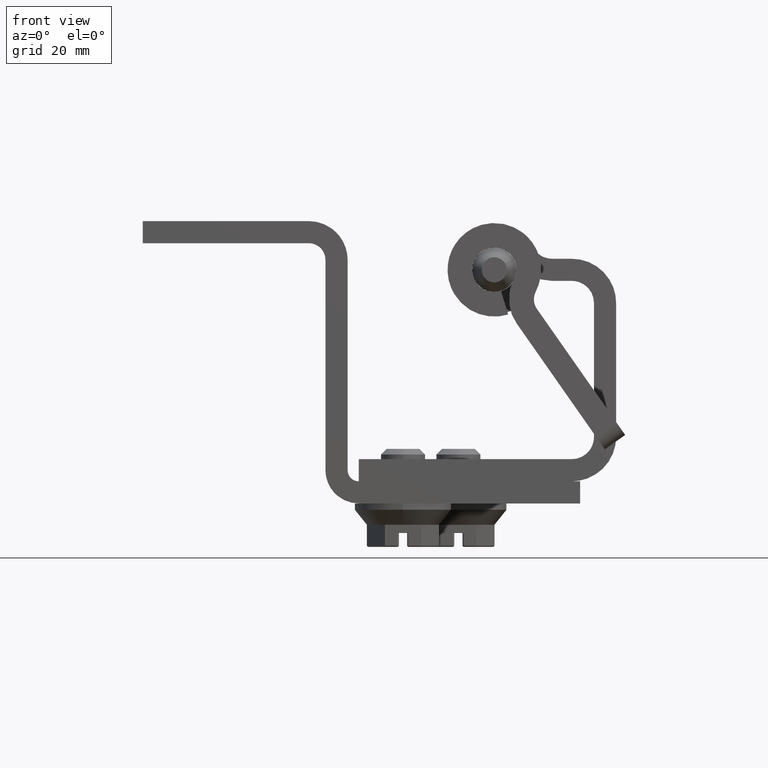
[diagram: clean part render]
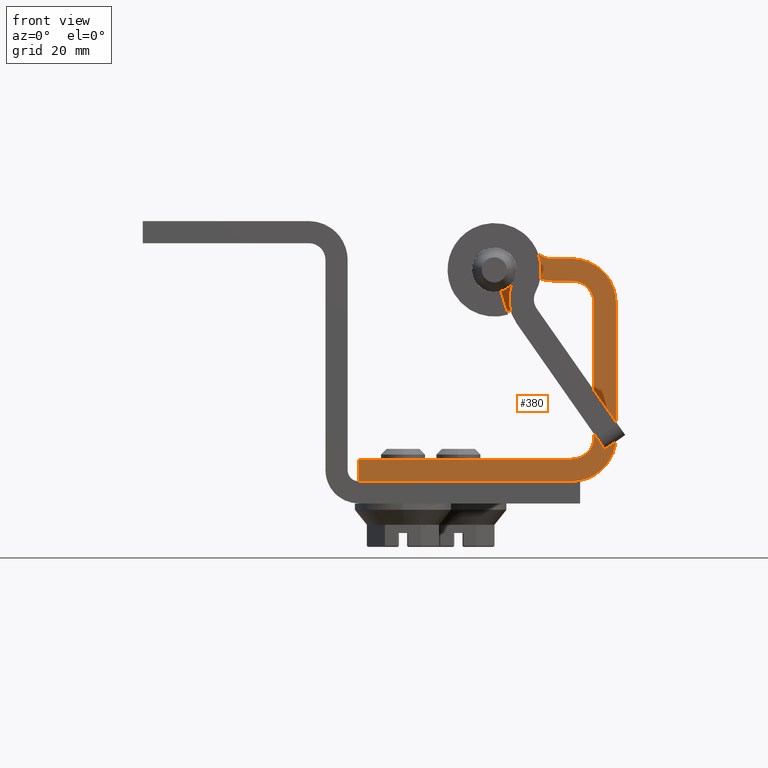
[diagram: same view with one face highlighted and labeled with its STEP entity id]
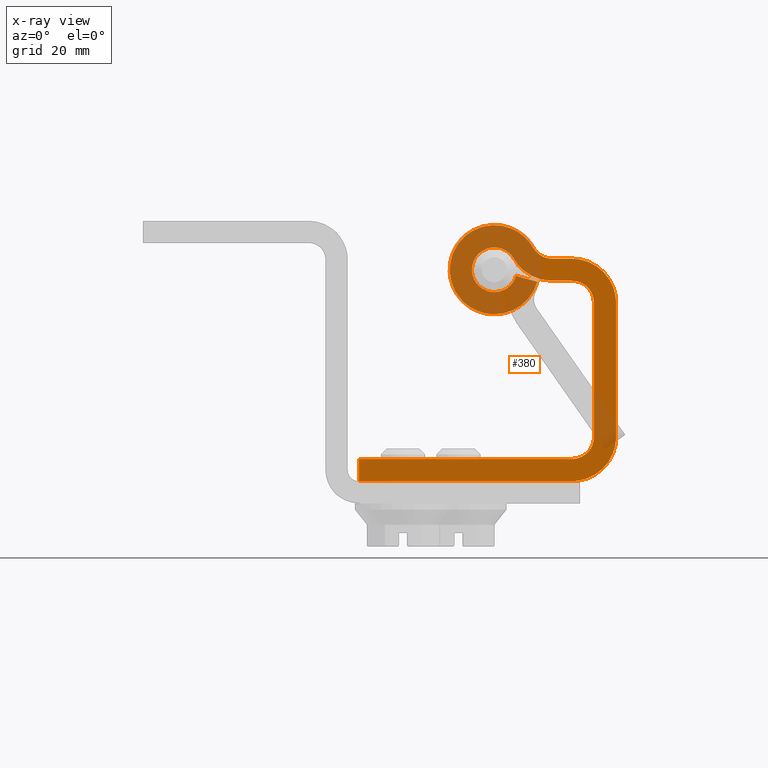
[diagram: x-ray of the same camera — body ghosted, the highlighted face saturated]
A machine part, front view. The second image highlights one B-rep face of the part: STEP entity #380.
The next image is the same camera in x-ray: the body ghosted, the highlighted face saturated — about 34% of this face is hidden behind the body in this view.
In plain terms, the highlighted planar face has unit normal (0, 1, 0).
Its self-contained STEP definition (entity closure, byte-faithful):
#380=ADVANCED_FACE('',(#1218),#1217,.F.);
#1217=PLANE('',#3998);
#1218=FACE_OUTER_BOUND('',#3999,.T.);
#3995=CARTESIAN_POINT('',(-2.91500000000E+01,-2.00000000000E+01,1.28764623578E+01));
#3996=DIRECTION('',(-0.00000000000E+00,1.00000000000E+00,0.00000000000E+00));
#3997=DIRECTION('',(1.00000000000E+00,0.00000000000E+00,0.00000000000E+00));
#3998=AXIS2_PLACEMENT_3D('',#3995,#3996,#3997);
#3999=EDGE_LOOP('',(#6079,#6080,#6081,#6082,#6083,#6084,#6085,#6086,#6087,#6088,#6089,#6090,#6091,#6092,#6093,#6094));
#6079=ORIENTED_EDGE('',*,*,#7428,.F.);
#6080=ORIENTED_EDGE('',*,*,#7429,.F.);
#6081=ORIENTED_EDGE('',*,*,#7430,.F.);
#6082=ORIENTED_EDGE('',*,*,#7431,.F.);
#6083=ORIENTED_EDGE('',*,*,#7432,.F.);
#6084=ORIENTED_EDGE('',*,*,#7433,.F.);
#6085=ORIENTED_EDGE('',*,*,#7434,.F.);
#6086=ORIENTED_EDGE('',*,*,#7435,.F.);
#6087=ORIENTED_EDGE('',*,*,#7436,.F.);
#6088=ORIENTED_EDGE('',*,*,#7437,.F.);
#6089=ORIENTED_EDGE('',*,*,#7438,.F.);
#6090=ORIENTED_EDGE('',*,*,#7415,.F.);
#6091=ORIENTED_EDGE('',*,*,#7397,.F.);
#6092=ORIENTED_EDGE('',*,*,#7400,.F.);
#6093=ORIENTED_EDGE('',*,*,#7439,.F.);
#6094=ORIENTED_EDGE('',*,*,#7440,.F.);
#7397=EDGE_CURVE('',#8968,#8953,#8975,.T.);
#7400=EDGE_CURVE('',#8988,#8968,#8995,.T.);
#7415=EDGE_CURVE('',#8953,#9085,#9099,.T.);
#7428=EDGE_CURVE('',#9189,#9190,#9191,.T.);
#7429=EDGE_CURVE('',#9197,#9189,#9198,.T.);
#7430=EDGE_CURVE('',#9204,#9197,#9205,.T.);
#7431=EDGE_CURVE('',#9211,#9204,#9212,.T.);
#7432=EDGE_CURVE('',#9218,#9211,#9219,.T.);
#7433=EDGE_CURVE('',#9225,#9218,#9226,.T.);
#7434=EDGE_CURVE('',#9232,#9225,#9233,.T.);
#7435=EDGE_CURVE('',#9239,#9232,#9240,.T.);
#7436=EDGE_CURVE('',#9246,#9239,#9247,.T.);
#7437=EDGE_CURVE('',#9253,#9246,#9254,.T.);
#7438=EDGE_CURVE('',#9085,#9253,#9260,.T.);
#7439=EDGE_CURVE('',#9266,#8988,#9267,.T.);
#7440=EDGE_CURVE('',#9190,#9266,#9273,.T.);
#8953=VERTEX_POINT('',#13767);
#8968=VERTEX_POINT('',#13776);
#8975=LINE('',#13780,#13781);
#8988=VERTEX_POINT('',#13787);
#8995=LINE('',#13791,#13792);
#9085=VERTEX_POINT('',#13878);
#9099=LINE('',#13886,#13887);
#9189=VERTEX_POINT('',#13973);
#9190=VERTEX_POINT('',#13974);
#9191=(BOUNDED_CURVE() B_SPLINE_CURVE(3,(#13975,#13976,#13977,#13978,#13979,#13980,#13981),.UNSPECIFIED.,.F.,.F.) B_SPLINE_CURVE_WITH_KNOTS((4,1,1,1,4),(0.00000000000E+00,2.50000000000E-01,5.00000000000E-01,7.50000000000E-01,1.00000000000E+00),.UNSPECIFIED.) CURVE() GEOMETRIC_REPRESENTATION_ITEM() RATIONAL_B_SPLINE_CURVE((1.00000000000E+00,1.00000000000E+00,1.00000000000E+00,1.00000000000E+00,1.00000000000E+00,1.00000000000E+00,1.00000000000E+00)) REPRESENTATION_ITEM('') );
#9197=VERTEX_POINT('',#13982);
#9198=LINE('',#13983,#13984);
#9204=VERTEX_POINT('',#13986);
#9205=(BOUNDED_CURVE() B_SPLINE_CURVE(3,(#13987,#13988,#13989,#13990,#13991),.UNSPECIFIED.,.F.,.F.) B_SPLINE_CURVE_WITH_KNOTS((4,1,4),(0.00000000000E+00,5.00000000000E-01,1.00000000000E+00),.UNSPECIFIED.) CURVE() GEOMETRIC_REPRESENTATION_ITEM() RATIONAL_B_SPLINE_CURVE((1.00000000000E+00,1.00000000000E+00,1.00000000000E+00,1.00000000000E+00,1.00000000000E+00)) REPRESENTATION_ITEM('') );
#9211=VERTEX_POINT('',#13992);
#9212=(BOUNDED_CURVE() B_SPLINE_CURVE(3,(#13993,#13994,#13995,#13996,#13997,#13998,#13999,#14000,#14001,#14002,#14003,#14004,#14005,#14006,#14007,#14008,#14009,#14010,#14011,#14012,#14013,#14014,#14015,#14016,#14017),.UNSPECIFIED.,.F.,.F.) B_SPLINE_CURVE_WITH_KNOTS((4,1,1,1,1,1,1,1,1,1,1,1,1,1,1,1,1,1,1,1,1,1,4),(0.00000000000E+00,6.25000000000E-02,1.25000000000E-01,1.87500000000E-01,2.50000000000E-01,3.12500000000E-01,3.75000000000E-01,4.06250000000E-01,4.37500000000E-01,4.68750000000E-01,4.84375000000E-01,5.00000000000E-01,5.15625000000E-01,5.31250000000E-01,5.62500000000E-01,5.93750000000E-01,6.25000000000E-01,6.87500000000E-01,7.50000000000E-01,8.12500000000E-01,8.75000000000E-01,9.37500000000E-01,1.00000000000E+00),.UNSPECIFIED.) CURVE() GEOMETRIC_REPRESENTATION_ITEM() RATIONAL_B_SPLINE_CURVE((1.00000000000E+00,1.00000000000E+00,1.00000000000E+00,1.00000000000E+00,1.00000000000E+00,1.00000000000E+00,1.00000000000E+00,1.00000000000E+00,1.00000000000E+00,1.00000000000E+00,1.00000000000E+00,1.00000000000E+00,1.00000000000E+00,1.00000000000E+00,1.00000000000E+00,1.00000000000E+00,1.00000000000E+00,1.00000000000E+00,1.00000000000E+00,1.00000000000E+00,1.00000000000E+00,1.00000000000E+00,1.00000000000E+00,1.00000000000E+00,1.00000000000E+00)) REPRESENTATION_ITEM('') );
#9218=VERTEX_POINT('',#14018);
#9219=LINE('',#14019,#14020);
#9225=VERTEX_POINT('',#14022);
#9226=(BOUNDED_CURVE() B_SPLINE_CURVE(3,(#14023,#14024,#14025,#14026,#14027,#14028,#14029,#14030,#14031,#14032,#14033,#14034,#14035,#14036,#14037,#14038,#14039,#14040,#14041,#14042,#14043),.UNSPECIFIED.,.F.,.F.) B_SPLINE_CURVE_WITH_KNOTS((4,1,1,1,1,1,1,1,1,1,1,1,1,1,1,1,1,1,4),(0.00000000000E+00,6.25000000000E-02,1.25000000000E-01,1.87500000000E-01,2.50000000000E-01,3.12500000000E-01,3.75000000000E-01,4.37500000000E-01,4.68750000000E-01,5.00000000000E-01,5.31250000000E-01,5.62500000000E-01,6.25000000000E-01,6.87500000000E-01,7.50000000000E-01,8.12500000000E-01,8.75000000000E-01,9.37500000000E-01,1.00000000000E+00),.UNSPECIFIED.) CURVE() GEOMETRIC_REPRESENTATION_ITEM() RATIONAL_B_SPLINE_CURVE((1.00000000000E+00,1.00000000000E+00,1.00000000000E+00,1.00000000000E+00,1.00000000000E+00,1.00000000000E+00,1.00000000000E+00,1.00000000000E+00,1.00000000000E+00,1.00000000000E+00,1.00000000000E+00,1.00000000000E+00,1.00000000000E+00,1.00000000000E+00,1.00000000000E+00,1.00000000000E+00,1.00000000000E+00,1.00000000000E+00,1.00000000000E+00,1.00000000000E+00,1.00000000000E+00)) REPRESENTATION_ITEM('') );
#9232=VERTEX_POINT('',#14044);
#9233=(BOUNDED_CURVE() B_SPLINE_CURVE(3,(#14045,#14046,#14047,#14048,#14049,#14050,#14051),.UNSPECIFIED.,.F.,.F.) B_SPLINE_CURVE_WITH_KNOTS((4,1,1,1,4),(0.00000000000E+00,2.50000000000E-01,5.00000000000E-01,7.50000000000E-01,1.00000000000E+00),.UNSPECIFIED.) CURVE() GEOMETRIC_REPRESENTATION_ITEM() RATIONAL_B_SPLINE_CURVE((1.00000000000E+00,1.00000000000E+00,1.00000000000E+00,1.00000000000E+00,1.00000000000E+00,1.00000000000E+00,1.00000000000E+00)) REPRESENTATION_ITEM('') );
#9239=VERTEX_POINT('',#14052);
#9240=LINE('',#14053,#14054);
#9246=VERTEX_POINT('',#14056);
#9247=(BOUNDED_CURVE() B_SPLINE_CURVE(3,(#14057,#14058,#14059,#14060,#14061,#14062,#14063),.UNSPECIFIED.,.F.,.F.) B_SPLINE_CURVE_WITH_KNOTS((4,1,1,1,4),(0.00000000000E+00,2.50000000000E-01,5.00000000000E-01,7.50000000000E-01,1.00000000000E+00),.UNSPECIFIED.) CURVE() GEOMETRIC_REPRESENTATION_ITEM() RATIONAL_B_SPLINE_CURVE((1.00000000000E+00,1.00000000000E+00,1.00000000000E+00,1.00000000000E+00,1.00000000000E+00,1.00000000000E+00,1.00000000000E+00)) REPRESENTATION_ITEM('') );
#9253=VERTEX_POINT('',#14064);
#9254=LINE('',#14065,#14066);
#9260=(BOUNDED_CURVE() B_SPLINE_CURVE(3,(#14068,#14069,#14070,#14071,#14072,#14073,#14074),.UNSPECIFIED.,.F.,.F.) B_SPLINE_CURVE_WITH_KNOTS((4,1,1,1,4),(0.00000000000E+00,2.50000000000E-01,5.00000000000E-01,7.50000000000E-01,1.00000000000E+00),.UNSPECIFIED.) CURVE() GEOMETRIC_REPRESENTATION_ITEM() RATIONAL_B_SPLINE_CURVE((1.00000000000E+00,1.00000000000E+00,1.00000000000E+00,1.00000000000E+00,1.00000000000E+00,1.00000000000E+00,1.00000000000E+00)) REPRESENTATION_ITEM('') );
#9266=VERTEX_POINT('',#14075);
#9267=(BOUNDED_CURVE() B_SPLINE_CURVE(3,(#14076,#14077,#14078,#14079,#14080,#14081,#14082),.UNSPECIFIED.,.F.,.F.) B_SPLINE_CURVE_WITH_KNOTS((4,1,1,1,4),(0.00000000000E+00,2.50000000000E-01,5.00000000000E-01,7.50000000000E-01,1.00000000000E+00),.UNSPECIFIED.) CURVE() GEOMETRIC_REPRESENTATION_ITEM() RATIONAL_B_SPLINE_CURVE((1.00000000000E+00,1.00000000000E+00,1.00000000000E+00,1.00000000000E+00,1.00000000000E+00,1.00000000000E+00,1.00000000000E+00)) REPRESENTATION_ITEM('') );
#9273=LINE('',#14083,#14084);
#13767=CARTESIAN_POINT('',(-2.45000000000E+01,-2.00000000000E+01,-3.42000000000E+01));
#13776=CARTESIAN_POINT('',(-2.45000000000E+01,-2.00000000000E+01,-3.82000000000E+01));
#13780=CARTESIAN_POINT('',(-2.45000000000E+01,-2.00000000000E+01,-3.82000000000E+01));
#13781=VECTOR('',#13782,4.00000000000E+00);
#13782=DIRECTION('',(0.00000000000E+00,0.00000000000E+00,1.00000000000E+00));
#13787=CARTESIAN_POINT('',(1.40000000000E+01,-2.00000000000E+01,-3.82000000000E+01));
#13791=CARTESIAN_POINT('',(1.40000000000E+01,-2.00000000000E+01,-3.82000000000E+01));
#13792=VECTOR('',#13793,3.85000000000E+01);
#13793=DIRECTION('',(-1.00000000000E+00,0.00000000000E+00,0.00000000000E+00));
#13878=CARTESIAN_POINT('',(1.40000000000E+01,-2.00000000000E+01,-3.42000000000E+01));
#13886=CARTESIAN_POINT('',(-2.45000000000E+01,-2.00000000000E+01,-3.42000000000E+01));
#13887=VECTOR('',#13888,3.85000000000E+01);
#13888=DIRECTION('',(1.00000000000E+00,0.00000000000E+00,0.00000000000E+00));
#13973=CARTESIAN_POINT('',(1.40000000000E+01,-2.00000000000E+01,2.00000000000E+00));
#13974=CARTESIAN_POINT('',(2.20000000000E+01,-2.00000000000E+01,-6.00000000000E+00));
#13975=CARTESIAN_POINT('',(1.40000000000E+01,-2.00000000000E+01,2.00000000000E+00));
#13976=CARTESIAN_POINT('',(1.49428090416E+01,-2.00000000000E+01,2.00000000000E+00));
#13977=CARTESIAN_POINT('',(1.69795767064E+01,-2.00000000000E+01,1.65829269334E+00));
#13978=CARTESIAN_POINT('',(1.98258140243E+01,-2.00000000000E+01,-1.74185975688E-01));
#13979=CARTESIAN_POINT('',(2.16582926933E+01,-2.00000000000E+01,-3.02042329363E+00));
#13980=CARTESIAN_POINT('',(2.20000000000E+01,-2.00000000000E+01,-5.05719095842E+00));
#13981=CARTESIAN_POINT('',(2.20000000000E+01,-2.00000000000E+01,-6.00000000000E+00));
#13982=CARTESIAN_POINT('',(1.04500000000E+01,-2.00000000000E+01,2.00000000000E+00));
#13983=CARTESIAN_POINT('',(1.04500000000E+01,-2.00000000000E+01,2.00000000000E+00));
#13984=VECTOR('',#13985,3.55000000000E+00);
#13985=DIRECTION('',(1.00000000000E+00,0.00000000000E+00,0.00000000000E+00));
#13986=CARTESIAN_POINT('',(6.98112033195E+00,-2.00000000000E+01,4.00829875519E+00));
#13987=CARTESIAN_POINT('',(6.98112033195E+00,-2.00000000000E+01,4.00829875519E+00));
#13988=CARTESIAN_POINT('',(7.31375851986E+00,-2.00000000000E+01,3.42895391124E+00));
#13989=CARTESIAN_POINT('',(8.34385475610E+00,-2.00000000000E+01,2.36211276053E+00));
#13990=CARTESIAN_POINT('',(9.78195163928E+00,-2.00000000000E+01,2.00000000000E+00));
#13991=CARTESIAN_POINT('',(1.04500000000E+01,-2.00000000000E+01,2.00000000000E+00));
#13992=CARTESIAN_POINT('',(7.75068096143E+00,-2.00000000000E+01,-2.17472863458E+00));
#13993=CARTESIAN_POINT('',(7.75068096143E+00,-2.00000000000E+01,-2.17472863458E+00));
#13994=CARTESIAN_POINT('',(7.57301901115E+00,-2.00000000000E+01,-2.80791158610E+00));
#13995=CARTESIAN_POINT('',(7.02760493471E+00,-2.00000000000E+01,-4.16373680423E+00));
#13996=CARTESIAN_POINT('',(5.36408888107E+00,-2.00000000000E+01,-6.22561571248E+00));
#13997=CARTESIAN_POINT('',(2.71437234440E+00,-2.00000000000E+01,-7.80593115342E+00));
#13998=CARTESIAN_POINT('',(-6.19568846187E-01,-2.00000000000E+01,-8.26135100851E+00));
#13999=CARTESIAN_POINT('',(-3.84857750909E+00,-2.00000000000E+01,-7.31338202628E+00));
#14000=CARTESIAN_POINT('',(-5.83481721039E+00,-2.00000000000E+01,-5.68316042565E+00));
#14001=CARTESIAN_POINT('',(-6.90229554032E+00,-2.00000000000E+01,-4.21057271570E+00));
#14002=CARTESIAN_POINT('',(-7.46598029903E+00,-2.00000000000E+01,-3.08862769911E+00));
#14003=CARTESIAN_POINT('',(-7.76304864046E+00,-2.00000000000E+01,-2.18317442760E+00));
#14004=CARTESIAN_POINT('',(-7.91657195872E+00,-2.00000000000E+01,-1.48960106386E+00));
#14005=CARTESIAN_POINT('',(-7.99335574518E+00,-2.00000000000E+01,-9.94880257059E-01));
#14006=CARTESIAN_POINT('',(-8.04018525483E+00,-2.00000000000E+01,-4.96431239035E-01));
#14007=CARTESIAN_POINT('',(-8.06136115094E+00,-2.00000000000E+01,2.13614535242E-01));
#14008=CARTESIAN_POINT('',(-7.99530954179E+00,-2.00000000000E+01,1.16426295148E+00));
#14009=CARTESIAN_POINT('',(-7.72384439545E+00,-2.00000000000E+01,2.39015356723E+00));
#14010=CARTESIAN_POINT('',(-7.04990910053E+00,-2.00000000000E+01,4.07948354287E+00));
#14011=CARTESIAN_POINT('',(-5.52388423270E+00,-2.00000000000E+01,6.14685354386E+00));
#14012=CARTESIAN_POINT('',(-2.62576662340E+00,-2.00000000000E+01,7.85742551224E+00));
#14013=CARTESIAN_POINT('',(7.18094022769E-01,-2.00000000000E+01,8.23314759800E+00));
#14014=CARTESIAN_POINT('',(3.67435052866E+00,-2.00000000000E+01,7.35057063880E+00));
#14015=CARTESIAN_POINT('',(5.79254057941E+00,-2.00000000000E+01,5.75937574127E+00));
#14016=CARTESIAN_POINT('',(6.65366698314E+00,-2.00000000000E+01,4.57861333770E+00));
#14017=CARTESIAN_POINT('',(6.98112033195E+00,-2.00000000000E+01,4.00829875519E+00));
#14018=CARTESIAN_POINT('',(3.89941091849E+00,-2.00000000000E+01,-1.09411813293E+00));
#14019=CARTESIAN_POINT('',(3.89941091849E+00,-2.00000000000E+01,-1.09411813293E+00));
#14020=VECTOR('',#14021,4.00000000000E+00);
#14021=DIRECTION('',(9.62817510737E-01,0.00000000000E+00,-2.70152625414E-01));
#14022=CARTESIAN_POINT('',(3.51224066390E+00,-2.00000000000E+01,2.01659751037E+00));
#14023=CARTESIAN_POINT('',(3.51224066390E+00,-2.00000000000E+01,2.01659751037E+00));
#14024=CARTESIAN_POINT('',(3.34749705363E+00,-2.00000000000E+01,2.30352596493E+00));
#14025=CARTESIAN_POINT('',(2.91425961690E+00,-2.00000000000E+01,2.89757594450E+00));
#14026=CARTESIAN_POINT('',(1.84858604325E+00,-2.00000000000E+01,3.69810683024E+00));
#14027=CARTESIAN_POINT('',(3.61278036594E-01,-2.00000000000E+01,4.14216615969E+00));
#14028=CARTESIAN_POINT('',(-1.32104129705E+00,-2.00000000000E+01,3.95302672967E+00));
#14029=CARTESIAN_POINT('',(-2.77908423338E+00,-2.00000000000E+01,3.09284467603E+00));
#14030=CARTESIAN_POINT('',(-3.70044678737E+00,-2.00000000000E+01,1.84316467589E+00));
#14031=CARTESIAN_POINT('',(-4.00944217822E+00,-2.00000000000E+01,7.78179048975E-01));
#14032=CARTESIAN_POINT('',(-4.06202023995E+00,-2.00000000000E+01,9.29666559648E-03));
#14033=CARTESIAN_POINT('',(-4.02902770089E+00,-2.00000000000E+01,-5.01466498245E-01));
#14034=CARTESIAN_POINT('',(-3.93581054489E+00,-2.00000000000E+01,-1.00473390132E+00));
#14035=CARTESIAN_POINT('',(-3.69636088922E+00,-2.00000000000E+01,-1.73726952123E+00));
#14036=CARTESIAN_POINT('',(-3.13573347538E+00,-2.00000000000E+01,-2.69401893459E+00));
#14037=CARTESIAN_POINT('',(-1.93614797106E+00,-2.00000000000E+01,-3.67971852191E+00));
#14038=CARTESIAN_POINT('',(-3.11733439704E-01,-2.00000000000E+01,-4.15624742966E+00));
#14039=CARTESIAN_POINT('',(1.36562257146E+00,-2.00000000000E+01,-3.92723023345E+00));
#14040=CARTESIAN_POINT('',(2.69870130549E+00,-2.00000000000E+01,-3.13213597261E+00));
#14041=CARTESIAN_POINT('',(3.53562784059E+00,-2.00000000000E+01,-2.09480100287E+00));
#14042=CARTESIAN_POINT('',(3.81002819816E+00,-2.00000000000E+01,-1.41267601537E+00));
#14043=CARTESIAN_POINT('',(3.89941091849E+00,-2.00000000000E+01,-1.09411813293E+00));
#14044=CARTESIAN_POINT('',(1.04500000000E+01,-2.00000000000E+01,-2.00000000000E+00));
#14045=CARTESIAN_POINT('',(1.04500000000E+01,-2.00000000000E+01,-2.00000000000E+00));
#14046=CARTESIAN_POINT('',(9.78195163928E+00,-2.00000000000E+01,-2.00000000000E+00));
#14047=CARTESIAN_POINT('',(8.39901600758E+00,-2.00000000000E+01,-1.83014756485E+00));
#14048=CARTESIAN_POINT('',(6.39261652128E+00,-2.00000000000E+01,-1.00820782689E+00));
#14049=CARTESIAN_POINT('',(4.68077692132E+00,-2.00000000000E+01,3.22517169301E-01));
#14050=CARTESIAN_POINT('',(3.84487885181E+00,-2.00000000000E+01,1.43725266643E+00));
#14051=CARTESIAN_POINT('',(3.51224066390E+00,-2.00000000000E+01,2.01659751037E+00));
#14052=CARTESIAN_POINT('',(1.40000000000E+01,-2.00000000000E+01,-2.00000000000E+00));
#14053=CARTESIAN_POINT('',(1.40000000000E+01,-2.00000000000E+01,-2.00000000000E+00));
#14054=VECTOR('',#14055,3.55000000000E+00);
#14055=DIRECTION('',(-1.00000000000E+00,0.00000000000E+00,0.00000000000E+00));
#14056=CARTESIAN_POINT('',(1.80000000000E+01,-2.00000000000E+01,-6.00000000000E+00));
#14057=CARTESIAN_POINT('',(1.80000000000E+01,-2.00000000000E+01,-6.00000000000E+00));
#14058=CARTESIAN_POINT('',(1.80000000000E+01,-2.00000000000E+01,-5.52859547921E+00));
#14059=CARTESIAN_POINT('',(1.78291463467E+01,-2.00000000000E+01,-4.51021164682E+00));
#14060=CARTESIAN_POINT('',(1.69129070122E+01,-2.00000000000E+01,-3.08709298784E+00));
#14061=CARTESIAN_POINT('',(1.54897883532E+01,-2.00000000000E+01,-2.17085365333E+00));
#14062=CARTESIAN_POINT('',(1.44714045208E+01,-2.00000000000E+01,-2.00000000000E+00));
#14063=CARTESIAN_POINT('',(1.40000000000E+01,-2.00000000000E+01,-2.00000000000E+00));
#14064=CARTESIAN_POINT('',(1.80000000000E+01,-2.00000000000E+01,-3.02000000000E+01));
#14065=CARTESIAN_POINT('',(1.80000000000E+01,-2.00000000000E+01,-3.02000000000E+01));
#14066=VECTOR('',#14067,2.42000000000E+01);
#14067=DIRECTION('',(0.00000000000E+00,0.00000000000E+00,1.00000000000E+00));
#14068=CARTESIAN_POINT('',(1.40000000000E+01,-2.00000000000E+01,-3.42000000000E+01));
#14069=CARTESIAN_POINT('',(1.44714045208E+01,-2.00000000000E+01,-3.42000000000E+01));
#14070=CARTESIAN_POINT('',(1.54897883532E+01,-2.00000000000E+01,-3.40291463467E+01));
#14071=CARTESIAN_POINT('',(1.69129070122E+01,-2.00000000000E+01,-3.31129070122E+01));
#14072=CARTESIAN_POINT('',(1.78291463467E+01,-2.00000000000E+01,-3.16897883532E+01));
#14073=CARTESIAN_POINT('',(1.80000000000E+01,-2.00000000000E+01,-3.06714045208E+01));
#14074=CARTESIAN_POINT('',(1.80000000000E+01,-2.00000000000E+01,-3.02000000000E+01));
#14075=CARTESIAN_POINT('',(2.20000000000E+01,-2.00000000000E+01,-3.02000000000E+01));
#14076=CARTESIAN_POINT('',(2.20000000000E+01,-2.00000000000E+01,-3.02000000000E+01));
#14077=CARTESIAN_POINT('',(2.20000000000E+01,-2.00000000000E+01,-3.11428090416E+01));
#14078=CARTESIAN_POINT('',(2.16582926933E+01,-2.00000000000E+01,-3.31795767064E+01));
#14079=CARTESIAN_POINT('',(1.98258140243E+01,-2.00000000000E+01,-3.60258140243E+01));
#14080=CARTESIAN_POINT('',(1.69795767064E+01,-2.00000000000E+01,-3.78582926933E+01));
#14081=CARTESIAN_POINT('',(1.49428090416E+01,-2.00000000000E+01,-3.82000000000E+01));
#14082=CARTESIAN_POINT('',(1.40000000000E+01,-2.00000000000E+01,-3.82000000000E+01));
#14083=CARTESIAN_POINT('',(2.20000000000E+01,-2.00000000000E+01,-6.00000000000E+00));
#14084=VECTOR('',#14085,2.42000000000E+01);
#14085=DIRECTION('',(0.00000000000E+00,0.00000000000E+00,-1.00000000000E+00));